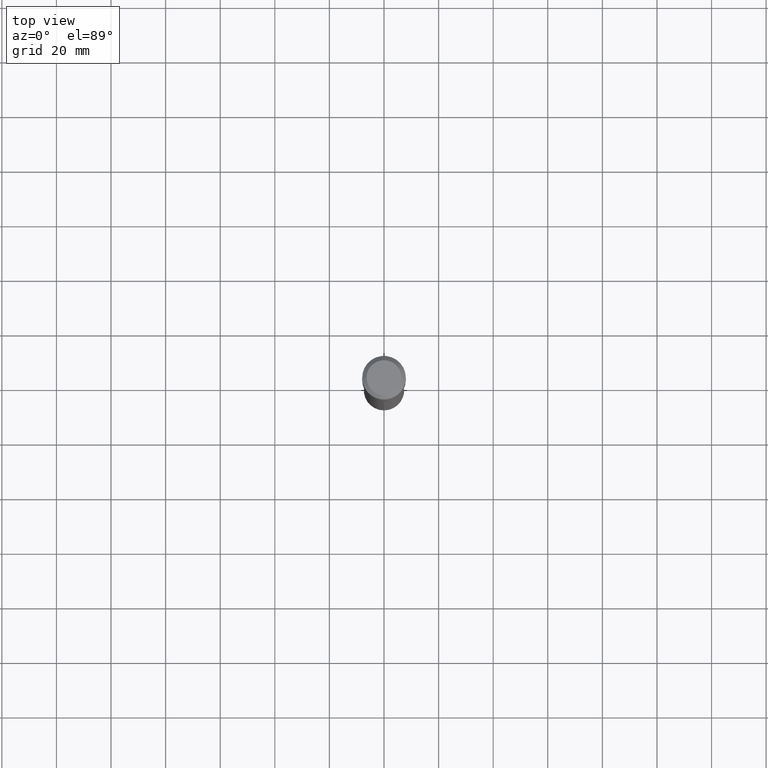
[diagram: clean part render]
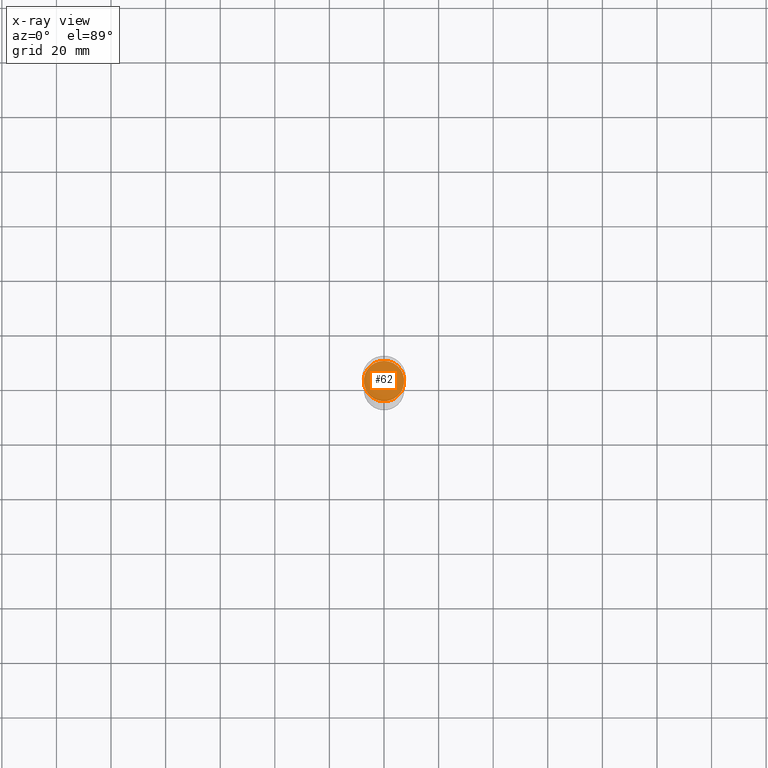
[diagram: x-ray — body ghosted, one internal face saturated and labeled with its STEP entity id]
A machine part, top view, then the same camera in x-ray: the body is ghosted and one INTERNAL B-rep face — a face not visible from any outside direction — is saturated and labeled: STEP entity #62.
In plain terms, the highlighted planar face has unit normal (0, -0, -1).
Its self-contained STEP definition (entity closure, byte-faithful):
#21 = CIRCLE ( 'NONE', #384, 0.2913499999999999979 ) ;
#56 = CARTESIAN_POINT ( 'NONE',  ( 7.048330193186798900E-29, -1.006314751481371118E-14, -2.882199999999999207 ) ) ;
#59 = CIRCLE ( 'NONE', #365, 0.2913499999999999979 ) ;
#62 = ADVANCED_FACE ( 'NONE', ( #412 ), #443, .F. ) ;
#70 = CARTESIAN_POINT ( 'NONE',  ( 7.048330193186798900E-29, -1.006314751481371118E-14, -2.882199999999999207 ) ) ;
#77 = DIRECTION ( 'NONE',  ( 2.445491696897657322E-29, -3.491448558039956977E-15, -1.000000000000000000 ) ) ;
#132 = ORIENTED_EDGE ( 'NONE', *, *, #457, .T. ) ;
#142 = CARTESIAN_POINT ( 'NONE',  ( 2.070166260637307467E-15, 0.2913499999999899503, -2.882200000000000095 ) ) ;
#243 = CARTESIAN_POINT ( 'NONE',  ( -2.034486176143823414E-15, -0.2913500000000100454, -2.882199999999997875 ) ) ;
#257 = EDGE_LOOP ( 'NONE', ( #132, #448 ) ) ;
#258 = DIRECTION ( 'NONE',  ( -2.445491696897657882E-29, 3.491448558039956582E-15, 1.000000000000000000 ) ) ;
#276 = EDGE_CURVE ( 'NONE', #346, #456, #21, .T. ) ;
#346 = VERTEX_POINT ( 'NONE', #142 ) ;
#365 = AXIS2_PLACEMENT_3D ( 'NONE', #56, #396, #383 ) ;
#372 = DIRECTION ( 'NONE',  ( 6.982962677686265922E-15, 1.000000000000000000, -3.491448558039956977E-15 ) ) ;
#374 = AXIS2_PLACEMENT_3D ( 'NONE', #70, #77, #372 ) ;
#383 = DIRECTION ( 'NONE',  ( -6.982962677686265922E-15, -1.000000000000000000, 3.750606478344620614E-15 ) ) ;
#384 = AXIS2_PLACEMENT_3D ( 'NONE', #439, #258, #471 ) ;
#396 = DIRECTION ( 'NONE',  ( -2.445491696897657882E-29, 3.491448558039956582E-15, 1.000000000000000000 ) ) ;
#412 = FACE_OUTER_BOUND ( 'NONE', #257, .T. ) ;
#439 = CARTESIAN_POINT ( 'NONE',  ( 7.048330193186798900E-29, -1.006314751481371118E-14, -2.882199999999999207 ) ) ;
#443 = PLANE ( 'NONE',  #374 ) ;
#448 = ORIENTED_EDGE ( 'NONE', *, *, #276, .T. ) ;
#456 = VERTEX_POINT ( 'NONE', #243 ) ;
#457 = EDGE_CURVE ( 'NONE', #456, #346, #59, .T. ) ;
#471 = DIRECTION ( 'NONE',  ( -6.982962677686265922E-15, -1.000000000000000000, 3.750606478344620614E-15 ) ) ;